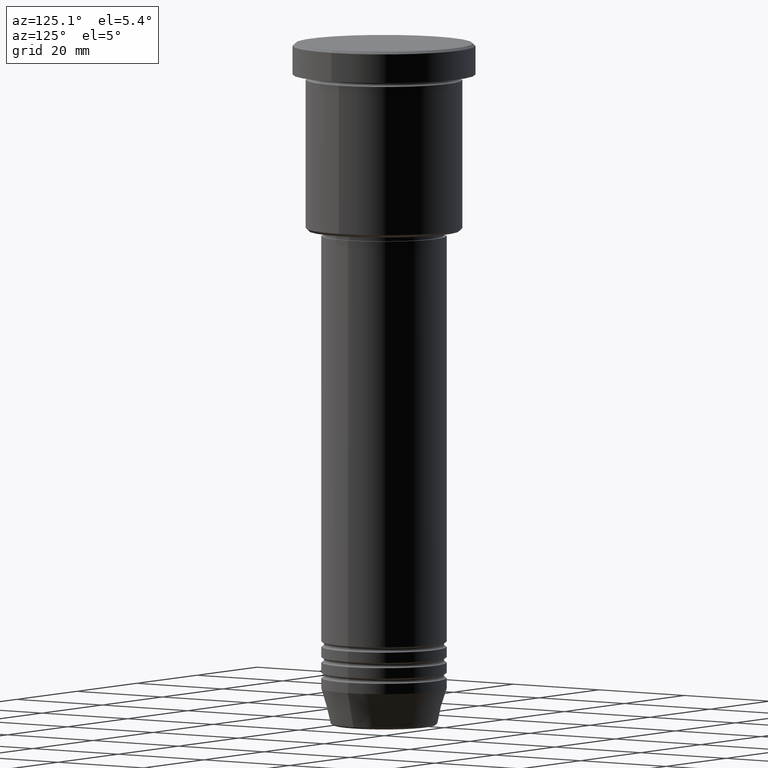
[diagram: clean part render]
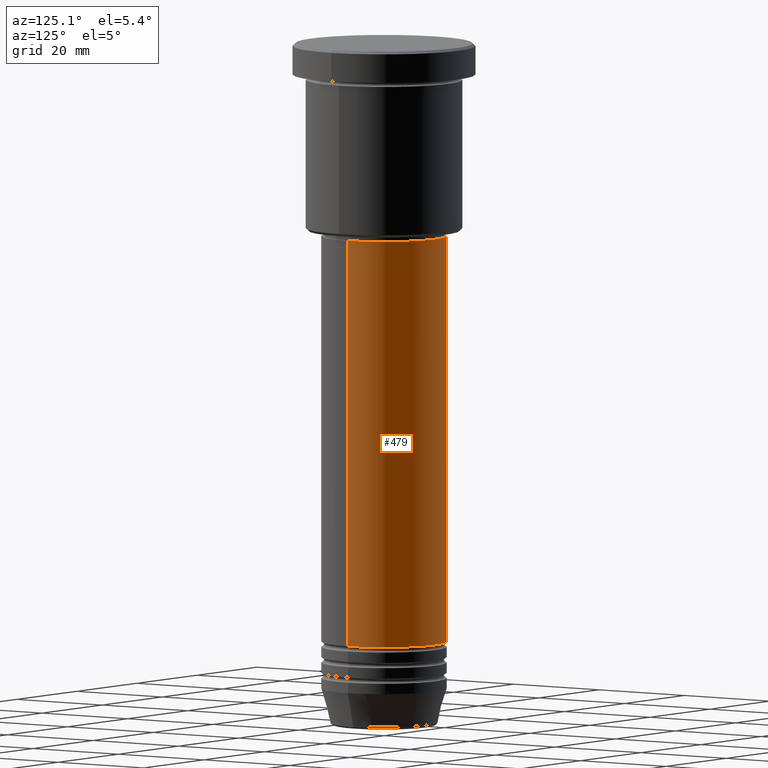
[diagram: same view with one face highlighted and labeled with its STEP entity id]
A machine part, auxiliary view. The second image highlights one B-rep face of the part: STEP entity #479.
In plain terms, the highlighted cylindrical surface (partial cylindrical patch) has radius 12 mm, axis along (-0, -0, 1).
Its self-contained STEP definition (entity closure, byte-faithful):
#14 = VERTEX_POINT ( 'NONE', #750 ) ;
#39 = FACE_OUTER_BOUND ( 'NONE', #674, .T. ) ;
#89 = ORIENTED_EDGE ( 'NONE', *, *, #501, .T. ) ;
#126 = CYLINDRICAL_SURFACE ( 'NONE', #407, 12.00000000000000000 ) ;
#130 = CARTESIAN_POINT ( 'NONE',  ( 0.000000000000000000, 0.000000000000000000, -114.9999999999999574 ) ) ;
#262 = EDGE_CURVE ( 'NONE', #581, #837, #511, .T. ) ;
#343 = EDGE_CURVE ( 'NONE', #837, #841, #426, .T. ) ;
#365 = ORIENTED_EDGE ( 'NONE', *, *, #262, .F. ) ;
#407 = AXIS2_PLACEMENT_3D ( 'NONE', #1122, #721, #810 ) ;
#426 = CIRCLE ( 'NONE', #483, 12.00000000000000000 ) ;
#427 = CIRCLE ( 'NONE', #974, 12.00000000000000000 ) ;
#434 = DIRECTION ( 'NONE',  ( -0.000000000000000000, -0.000000000000000000, 1.000000000000000000 ) ) ;
#449 = ORIENTED_EDGE ( 'NONE', *, *, #791, .T. ) ;
#479 = ADVANCED_FACE ( 'NONE', ( #39 ), #126, .T. ) ;
#483 = AXIS2_PLACEMENT_3D ( 'NONE', #710, #434, #543 ) ;
#488 = DIRECTION ( 'NONE',  ( 1.000000000000000000, 0.000000000000000000, 0.000000000000000000 ) ) ;
#489 = CARTESIAN_POINT ( 'NONE',  ( 12.00000000000000000, 0.000000000000000000, 0.000000000000000000 ) ) ;
#501 = EDGE_CURVE ( 'NONE', #581, #14, #427, .T. ) ;
#511 = LINE ( 'NONE', #489, #856 ) ;
#542 = LINE ( 'NONE', #901, #851 ) ;
#543 = DIRECTION ( 'NONE',  ( 1.000000000000000000, 0.000000000000000000, 0.000000000000000000 ) ) ;
#551 = DIRECTION ( 'NONE',  ( -0.000000000000000000, -0.000000000000000000, 1.000000000000000000 ) ) ;
#581 = VERTEX_POINT ( 'NONE', #1005 ) ;
#674 = EDGE_LOOP ( 'NONE', ( #89, #449, #751, #365 ) ) ;
#710 = CARTESIAN_POINT ( 'NONE',  ( 0.000000000000000000, 0.000000000000000000, -37.00000000000000000 ) ) ;
#721 = DIRECTION ( 'NONE',  ( -0.000000000000000000, -0.000000000000000000, 1.000000000000000000 ) ) ;
#750 = CARTESIAN_POINT ( 'NONE',  ( -12.00000000000000000, 1.469576158976823947E-15, -114.9999999999999574 ) ) ;
#751 = ORIENTED_EDGE ( 'NONE', *, *, #343, .F. ) ;
#791 = EDGE_CURVE ( 'NONE', #14, #841, #542, .T. ) ;
#810 = DIRECTION ( 'NONE',  ( 1.000000000000000000, 0.000000000000000000, 0.000000000000000000 ) ) ;
#837 = VERTEX_POINT ( 'NONE', #1097 ) ;
#841 = VERTEX_POINT ( 'NONE', #984 ) ;
#851 = VECTOR ( 'NONE', #551, 1000.000000000000000 ) ;
#856 = VECTOR ( 'NONE', #1038, 1000.000000000000000 ) ;
#901 = CARTESIAN_POINT ( 'NONE',  ( -12.00000000000000000, 1.469576158976823947E-15, 0.000000000000000000 ) ) ;
#943 = DIRECTION ( 'NONE',  ( -0.000000000000000000, -0.000000000000000000, 1.000000000000000000 ) ) ;
#974 = AXIS2_PLACEMENT_3D ( 'NONE', #130, #943, #488 ) ;
#984 = CARTESIAN_POINT ( 'NONE',  ( -12.00000000000000000, 1.469576158976823947E-15, -37.00000000000000000 ) ) ;
#1005 = CARTESIAN_POINT ( 'NONE',  ( 12.00000000000000000, 0.000000000000000000, -114.9999999999999574 ) ) ;
#1038 = DIRECTION ( 'NONE',  ( -0.000000000000000000, -0.000000000000000000, 1.000000000000000000 ) ) ;
#1097 = CARTESIAN_POINT ( 'NONE',  ( 12.00000000000000000, 0.000000000000000000, -37.00000000000000000 ) ) ;
#1122 = CARTESIAN_POINT ( 'NONE',  ( 0.000000000000000000, 0.000000000000000000, 0.000000000000000000 ) ) ;